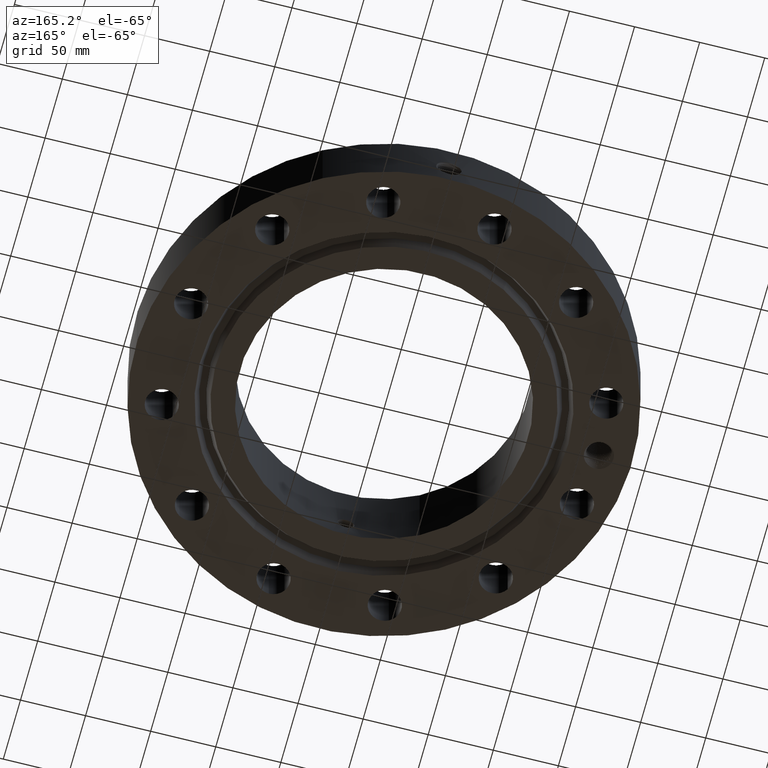
[diagram: clean part render]
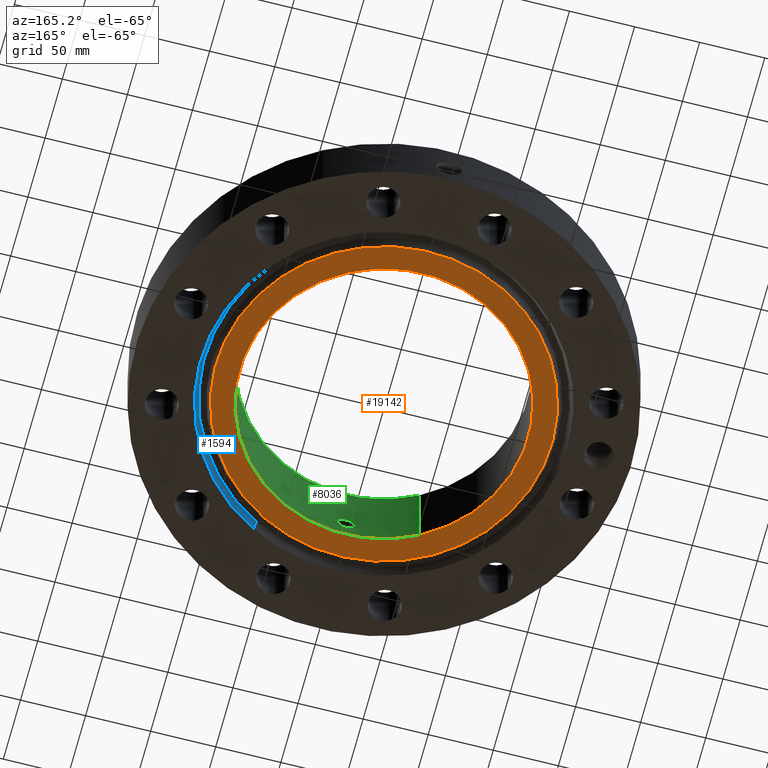
[diagram: same view with three faces highlighted in distinct colors, each labeled with its STEP entity id]
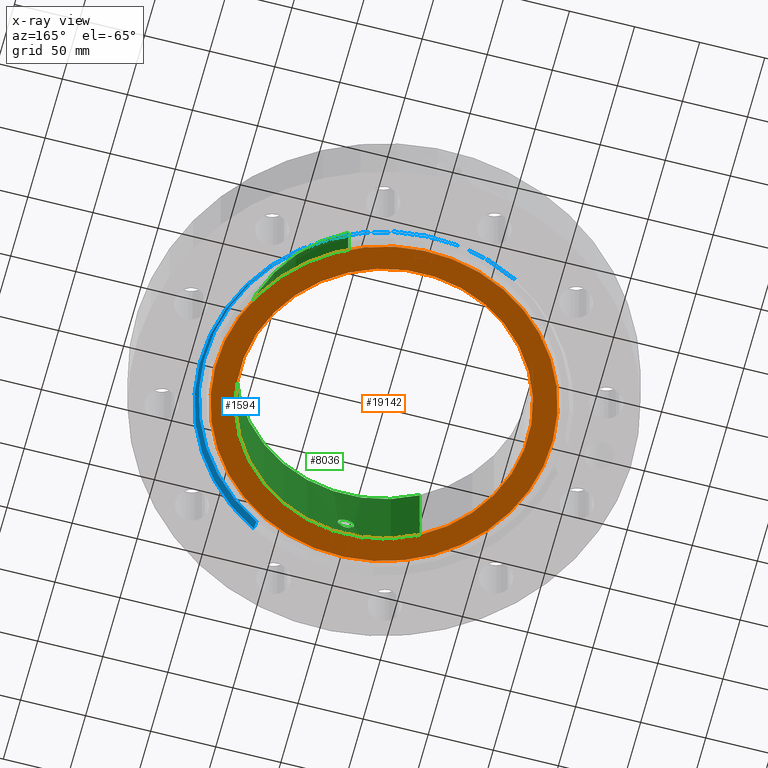
[diagram: x-ray of the same camera — body ghosted, the three highlighted faces saturated]
A machine part, auxiliary view with three faces highlighted in distinct colors.
The next image is the same camera in x-ray (body ghosted, the three faces saturated) — at least one of them is partly hidden behind the body in this view.
Their STEP definitions:

[orange] entity #19142 — the highlighted planar face has unit normal (0, 0, -1).
#165=AXIS2_PLACEMENT_3D('Plane Axis2P3D',#162,#163,#164) ;
#7641=AXIS2_PLACEMENT_3D('Circle Axis2P3D',#7639,#7640,$) ;
#7653=AXIS2_PLACEMENT_3D('Circle Axis2P3D',#7651,#7652,$) ;
#7978=AXIS2_PLACEMENT_3D('Circle Axis2P3D',#7976,#7977,$) ;
#8039=AXIS2_PLACEMENT_3D('Circle Axis2P3D',#8037,#8038,$) ;
#162=CARTESIAN_POINT('Axis2P3D Location',(0.,4.36000000002,0.)) ;
#7629=CARTESIAN_POINT('Vertex',(2.43452288504,-4.4563642493,0.)) ;
#7636=CARTESIAN_POINT('Vertex',(-2.43452288504,4.4563642493,0.)) ;
#7639=CARTESIAN_POINT('Axis2P3D Location',(0.,0.,0.)) ;
#7651=CARTESIAN_POINT('Axis2P3D Location',(0.,0.,0.)) ;
#7973=CARTESIAN_POINT('Vertex',(2.09029534832,3.82625996986,-4.47585975282E-015)) ;
#7976=CARTESIAN_POINT('Axis2P3D Location',(0.,7.99652833788E-018,-4.47585975282E-015)) ;
#7980=CARTESIAN_POINT('Vertex',(-2.09029534832,-3.82625996986,-4.47585975282E-015)) ;
#8037=CARTESIAN_POINT('Axis2P3D Location',(0.,7.99652833788E-018,-4.47585975282E-015)) ;
#163=DIRECTION('Axis2P3D Direction',(0.,0.,-0.0393700787402)) ;
#164=DIRECTION('Axis2P3D XDirection',(0.0393700787402,0.,0.)) ;
#7640=DIRECTION('Axis2P3D Direction',(0.,0.,0.0393700787402)) ;
#7652=DIRECTION('Axis2P3D Direction',(0.,0.,0.0393700787402)) ;
#7977=DIRECTION('Axis2P3D Direction',(0.,0.,-0.0393700787402)) ;
#8038=DIRECTION('Axis2P3D Direction',(0.,0.,-0.0393700787402)) ;
#19135=ORIENTED_EDGE('',*,*,#7655,.T.) ;
#19136=ORIENTED_EDGE('',*,*,#7643,.T.) ;
#19139=ORIENTED_EDGE('',*,*,#7982,.F.) ;
#19140=ORIENTED_EDGE('',*,*,#8041,.F.) ;
#19141=FACE_BOUND('',#19138,.T.) ;
#19142=ADVANCED_FACE('PartBody',(#19137,#19141),#166,.T.) ;
#7642=CIRCLE('generated circle',#7641,5.07800000002) ;
#7654=CIRCLE('generated circle',#7653,5.07800000002) ;
#7979=CIRCLE('generated circle',#7978,4.36000000002) ;
#8040=CIRCLE('generated circle',#8039,4.36000000002) ;
#7643=EDGE_CURVE('',#7630,#7637,#7642,.F.) ;
#7655=EDGE_CURVE('',#7637,#7630,#7654,.F.) ;
#7982=EDGE_CURVE('',#7974,#7981,#7979,.T.) ;
#8041=EDGE_CURVE('',#7981,#7974,#8040,.T.) ;
#19134=EDGE_LOOP('',(#19135,#19136)) ;
#19138=EDGE_LOOP('',(#19139,#19140)) ;
#19137=FACE_OUTER_BOUND('',#19134,.T.) ;
#166=PLANE('',#165) ;
#7630=VERTEX_POINT('',#7629) ;
#7637=VERTEX_POINT('',#7636) ;
#7974=VERTEX_POINT('',#7973) ;
#7981=VERTEX_POINT('',#7980) ;

[blue] entity #1594 — the highlighted conical surface has half-angle 23 deg.
#421=AXIS2_PLACEMENT_3D('Circle Axis2P3D',#419,#420,$) ;
#1555=AXIS2_PLACEMENT_3D('Cone Axis2P3D',#1552,#1553,#1554) ;
#1585=AXIS2_PLACEMENT_3D('Circle Axis2P3D',#1583,#1584,$) ;
#414=CARTESIAN_POINT('Vertex',(2.65937346265,-4.86795047083,-3.49676543189E-017)) ;
#416=CARTESIAN_POINT('Vertex',(-2.65937346265,4.86795047083,-3.49676543189E-017)) ;
#419=CARTESIAN_POINT('Axis2P3D Location',(2.79741234551E-016,-5.59482469102E-016,0.)) ;
#1552=CARTESIAN_POINT('Axis2P3D Location',(0.,0.,0.294112664984)) ;
#1557=CARTESIAN_POINT('Line Origine',(-2.62944690085,4.8131702669,0.147056332492)) ;
#1561=CARTESIAN_POINT('Vertex',(-2.59952033905,4.75839006298,0.294112664984)) ;
#1568=CARTESIAN_POINT('Vertex',(2.59952033905,-4.75839006298,0.294112664984)) ;
#1571=CARTESIAN_POINT('Line Origine',(2.62944690085,-4.8131702669,0.147056332492)) ;
#1583=CARTESIAN_POINT('Axis2P3D Location',(0.,0.,0.294112664984)) ;
#420=DIRECTION('Axis2P3D Direction',(0.,0.,-0.0393700787402)) ;
#1553=DIRECTION('Axis2P3D Direction',(-0.,-0.,-0.0393700787402)) ;
#1554=DIRECTION('Axis2P3D XDirection',(-0.0188750212049,0.0345504945626,0.)) ;
#1558=DIRECTION('Vector Direction',(-0.00737505833565,0.0134999537303,-0.0362403485611)) ;
#1572=DIRECTION('Vector Direction',(0.00737505833565,-0.0134999537303,-0.0362403485611)) ;
#1584=DIRECTION('Axis2P3D Direction',(0.,0.,-0.0393700787402)) ;
#1559=VECTOR('Line Direction',#1558,0.0393700787402) ;
#1573=VECTOR('Line Direction',#1572,0.0393700787402) ;
#1589=ORIENTED_EDGE('',*,*,#423,.T.) ;
#1590=ORIENTED_EDGE('',*,*,#1575,.T.) ;
#1591=ORIENTED_EDGE('',*,*,#1587,.T.) ;
#1592=ORIENTED_EDGE('',*,*,#1563,.F.) ;
#1594=ADVANCED_FACE('PartBody',(#1593),#1556,.F.) ;
#422=CIRCLE('generated circle',#421,5.54700000002) ;
#1586=CIRCLE('generated circle',#1585,5.42215658061) ;
#1556=CONICAL_SURFACE('Cone',#1555,5.42215658061,0.401425727959) ;
#423=EDGE_CURVE('',#417,#415,#422,.T.) ;
#1563=EDGE_CURVE('',#417,#1562,#1560,.F.) ;
#1575=EDGE_CURVE('',#415,#1569,#1574,.F.) ;
#1587=EDGE_CURVE('',#1569,#1562,#1586,.F.) ;
#1588=EDGE_LOOP('',(#1589,#1590,#1591,#1592)) ;
#1593=FACE_OUTER_BOUND('',#1588,.T.) ;
#1560=LINE('Line',#1557,#1559) ;
#1574=LINE('Line',#1571,#1573) ;
#415=VERTEX_POINT('',#414) ;
#417=VERTEX_POINT('',#416) ;
#1562=VERTEX_POINT('',#1561) ;
#1569=VERTEX_POINT('',#1568) ;

[green] entity #8036 — the highlighted cylindrical surface (partial cylindrical patch) has radius 110.744 mm, axis along (0, 0, -1).
#4468=AXIS2_PLACEMENT_3D('Circle Axis2P3D',#4466,#4467,$) ;
#7967=AXIS2_PLACEMENT_3D('Cylinder Axis2P3D',#7964,#7965,#7966) ;
#7978=AXIS2_PLACEMENT_3D('Circle Axis2P3D',#7976,#7977,$) ;
#4461=CARTESIAN_POINT('Vertex',(-2.09029534832,-3.82625996986,2.75300000001)) ;
#4463=CARTESIAN_POINT('Vertex',(2.09029534832,3.82625996986,2.75300000001)) ;
#4466=CARTESIAN_POINT('Axis2P3D Location',(0.,0.,2.75300000001)) ;
#7964=CARTESIAN_POINT('Axis2P3D Location',(0.,7.99652833788E-018,1.37650000001)) ;
#7969=CARTESIAN_POINT('Line Origine',(2.09029534832,3.82625996986,1.37650000001)) ;
#7973=CARTESIAN_POINT('Vertex',(2.09029534832,3.82625996986,-4.47585975282E-015)) ;
#7976=CARTESIAN_POINT('Axis2P3D Location',(0.,7.99652833788E-018,-4.47585975282E-015)) ;
#7980=CARTESIAN_POINT('Vertex',(-2.09029534832,-3.82625996986,-4.47585975282E-015)) ;
#7983=CARTESIAN_POINT('Line Origine',(-2.09029534832,-3.82625996986,1.37650000001)) ;
#7995=CARTESIAN_POINT('Control Point',(0.219395640473,-4.35447649587,0.630143615351)) ;
#7996=CARTESIAN_POINT('Control Point',(0.206921828392,-4.35510497555,0.607310455494)) ;
#7997=CARTESIAN_POINT('Control Point',(0.191478845323,-4.35583827482,0.586102267769)) ;
#7998=CARTESIAN_POINT('Control Point',(0.173346733997,-4.35661970999,0.567031465373)) ;
#7999=CARTESIAN_POINT('Control Point',(0.112147345652,-4.35887953672,0.517558493303)) ;
#8000=CARTESIAN_POINT('Control Point',(0.035000576247,-4.36034773406,0.49403087513)) ;
#8001=CARTESIAN_POINT('Control Point',(-0.0195405307343,-4.36045769363,0.492387723035)) ;
#8002=CARTESIAN_POINT('Control Point',(-0.12412002024,-4.35884246136,0.517519887161)) ;
#8003=CARTESIAN_POINT('Control Point',(-0.203161402029,-4.35549767079,0.590408312097)) ;
#8004=CARTESIAN_POINT('Control Point',(-0.232144566633,-4.35385015172,0.6366101219)) ;
#8005=CARTESIAN_POINT('Control Point',(-0.255829419349,-4.35249276248,0.714771405678)) ;
#8006=CARTESIAN_POINT('Control Point',(-0.248302401043,-4.352923767,0.794172620953)) ;
#8007=CARTESIAN_POINT('Control Point',(-0.24206815766,-4.35328603716,0.820766559246)) ;
#8008=CARTESIAN_POINT('Control Point',(-0.232327534888,-4.3538249362,0.846184710711)) ;
#8009=CARTESIAN_POINT('Control Point',(-0.219395640473,-4.35447649587,0.869856384655)) ;
#8010=CARTESIAN_POINT('Vertex',(0.219395640473,-4.35447649587,0.630143615351)) ;
#8012=CARTESIAN_POINT('Vertex',(-0.219395640473,-4.35447649587,0.869856384655)) ;
#8016=CARTESIAN_POINT('Control Point',(-0.219395640473,-4.35447649587,0.869856384655)) ;
#8017=CARTESIAN_POINT('Control Point',(-0.206921828392,-4.35510497555,0.892689544512)) ;
#8018=CARTESIAN_POINT('Control Point',(-0.191478845323,-4.35583827482,0.913897732236)) ;
#8019=CARTESIAN_POINT('Control Point',(-0.173346733998,-4.35661970999,0.932968534632)) ;
#8020=CARTESIAN_POINT('Control Point',(-0.112147345652,-4.35887953672,0.982441506704)) ;
#8021=CARTESIAN_POINT('Control Point',(-0.0350005762462,-4.36034773406,1.00596912488)) ;
#8022=CARTESIAN_POINT('Control Point',(0.0195405307319,-4.36045769363,1.00761227697)) ;
#8023=CARTESIAN_POINT('Control Point',(0.124120020231,-4.35884246136,0.982480112848)) ;
#8024=CARTESIAN_POINT('Control Point',(0.203161402017,-4.35549767079,0.90959168792)) ;
#8025=CARTESIAN_POINT('Control Point',(0.232144566637,-4.35385015172,0.863389878091)) ;
#8026=CARTESIAN_POINT('Control Point',(0.255829419346,-4.35249276248,0.78522859433)) ;
#8027=CARTESIAN_POINT('Control Point',(0.248302401045,-4.352923767,0.705827379072)) ;
#8028=CARTESIAN_POINT('Control Point',(0.242068157654,-4.35328603716,0.679233440743)) ;
#8029=CARTESIAN_POINT('Control Point',(0.232327534883,-4.3538249362,0.653815289287)) ;
#8030=CARTESIAN_POINT('Control Point',(0.219395640473,-4.35447649587,0.630143615351)) ;
#4467=DIRECTION('Axis2P3D Direction',(0.,0.,-0.0393700787402)) ;
#7965=DIRECTION('Axis2P3D Direction',(0.,0.,-0.0393700787402)) ;
#7966=DIRECTION('Axis2P3D XDirection',(-0.0188750212049,-0.0345504945626,0.)) ;
#7970=DIRECTION('Vector Direction',(0.,0.,-0.0393700787402)) ;
#7977=DIRECTION('Axis2P3D Direction',(0.,0.,-0.0393700787402)) ;
#7984=DIRECTION('Vector Direction',(0.,0.,-0.0393700787402)) ;
#7971=VECTOR('Line Direction',#7970,0.0393700787402) ;
#7985=VECTOR('Line Direction',#7984,0.0393700787402) ;
#7989=ORIENTED_EDGE('',*,*,#4470,.F.) ;
#7990=ORIENTED_EDGE('',*,*,#7975,.T.) ;
#7991=ORIENTED_EDGE('',*,*,#7982,.T.) ;
#7992=ORIENTED_EDGE('',*,*,#7987,.F.) ;
#8033=ORIENTED_EDGE('',*,*,#8014,.F.) ;
#8034=ORIENTED_EDGE('',*,*,#8031,.F.) ;
#8035=FACE_BOUND('',#8032,.T.) ;
#8036=ADVANCED_FACE('PartBody',(#7993,#8035),#7968,.F.) ;
#7994=B_SPLINE_CURVE_WITH_KNOTS('',5,(#7995,#7996,#7997,#7998,#7999,#8000,#8001,#8002,#8003,#8004,#8005,#8006,#8007,#8008,#8009),.UNSPECIFIED.,.F.,.U.,(6,3,3,3,6),(0.,4.67437354421,14.0217372293,23.3717028653,28.2177358769),.UNSPECIFIED.) ;
#8015=B_SPLINE_CURVE_WITH_KNOTS('',5,(#8016,#8017,#8018,#8019,#8020,#8021,#8022,#8023,#8024,#8025,#8026,#8027,#8028,#8029,#8030),.UNSPECIFIED.,.F.,.U.,(6,3,3,3,6),(0.,4.67437354417,14.0217372294,23.371702864,28.217735874),.UNSPECIFIED.) ;
#4469=CIRCLE('generated circle',#4468,4.36000000002) ;
#7979=CIRCLE('generated circle',#7978,4.36000000002) ;
#7968=CYLINDRICAL_SURFACE('generated cylinder',#7967,4.36000000002) ;
#4470=EDGE_CURVE('',#4464,#4462,#4469,.T.) ;
#7975=EDGE_CURVE('',#4464,#7974,#7972,.T.) ;
#7982=EDGE_CURVE('',#7974,#7981,#7979,.T.) ;
#7987=EDGE_CURVE('',#4462,#7981,#7986,.T.) ;
#8014=EDGE_CURVE('',#8011,#8013,#7994,.T.) ;
#8031=EDGE_CURVE('',#8013,#8011,#8015,.T.) ;
#7988=EDGE_LOOP('',(#7989,#7990,#7991,#7992)) ;
#8032=EDGE_LOOP('',(#8033,#8034)) ;
#7993=FACE_OUTER_BOUND('',#7988,.T.) ;
#7972=LINE('Line',#7969,#7971) ;
#7986=LINE('Line',#7983,#7985) ;
#4462=VERTEX_POINT('',#4461) ;
#4464=VERTEX_POINT('',#4463) ;
#7974=VERTEX_POINT('',#7973) ;
#7981=VERTEX_POINT('',#7980) ;
#8011=VERTEX_POINT('',#8010) ;
#8013=VERTEX_POINT('',#8012) ;